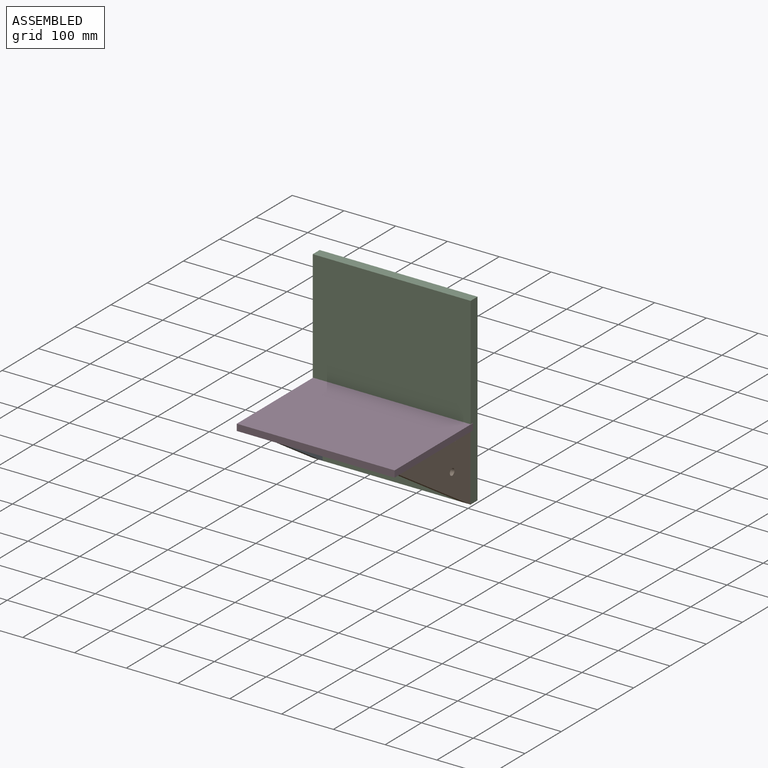
[diagram: assembled view]
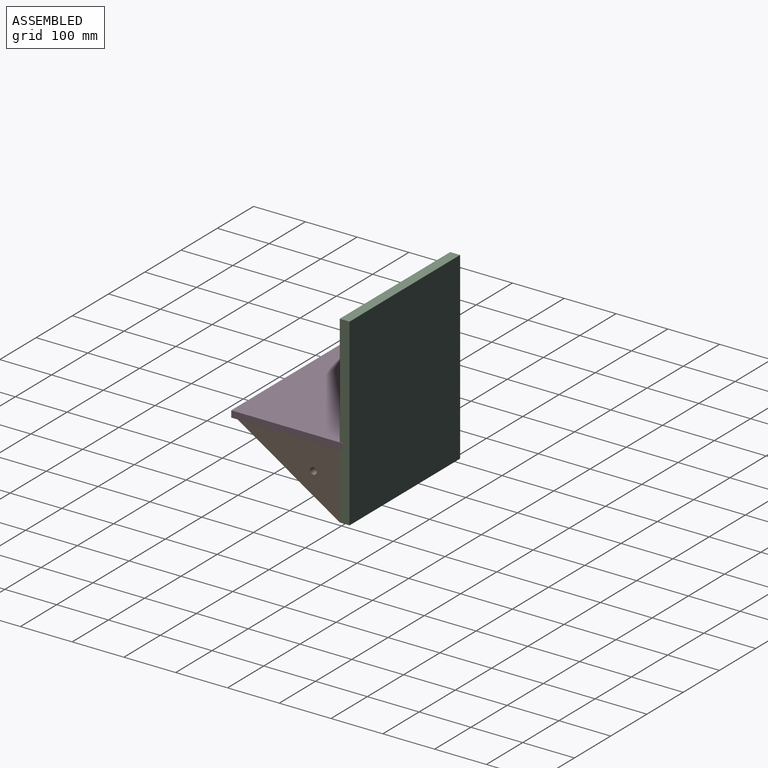
[diagram: assembled view, second angle]
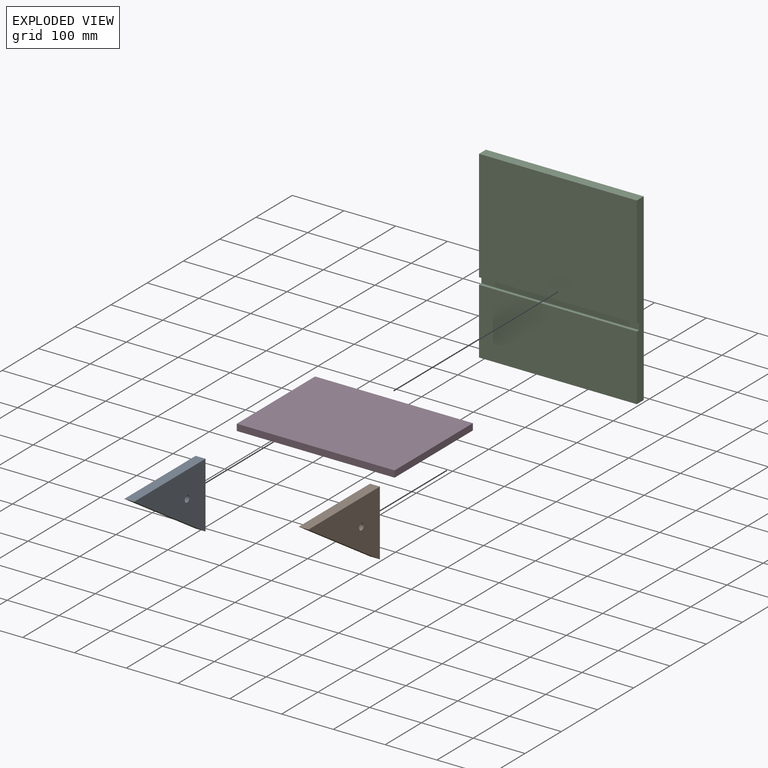
[diagram: exploded view]
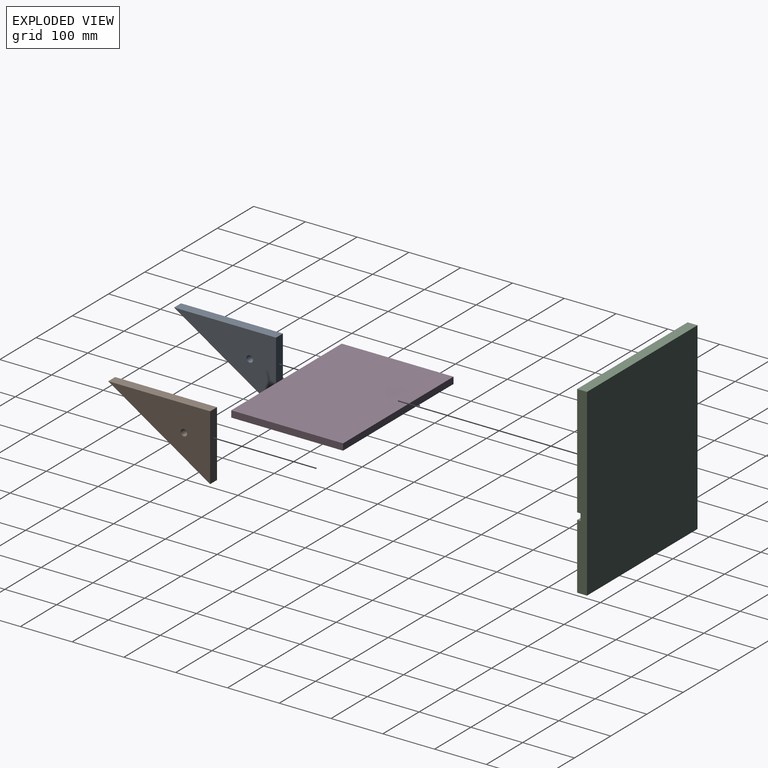
[diagram: exploded view, second angle]
ASSEMBLY  parts=4 mates=3
PART A: 6 faces, bbox 19.1x196.9x127 mm
  f0: plane 196.85x127mm, normal (0,-0.54,-0.84), area 4462.7mm2, adj f1,f2,f3,f4
  f1: plane 127x19.05mm, normal (0,1,0), area 2419.4mm2, adj f0,f2,f3,f4
  f2: plane 196.85x19.05mm, normal (0,0,1), area 3750mm2, adj f0,f1,f3,f4
  f3: plane 196.85x127mm, normal (1,0,0), area 12373.3mm2, adj f0,f1,f2,f5
  f4: plane 196.85x127mm, normal (-1,0,0), area 12373.3mm2, adj f0,f1,f2,f5
  f5: cylinder r=6.35mm len=19.05mm, axis (1,0,0), area 760.1mm2, adj f3,f4
PART B: same geometry as A
PART C: 10 faces, bbox 304.8x19.1x355.6 mm
  f0: plane 304.8x215.39mm, normal (0,-1,0), area 65651.5mm2, adj f1,f2,f3,f7
  f1: plane 355.6x19.05mm, normal (1,0,0), area 6690mm2, adj f0,f2,f4,f5,f6,f7,f8,f9
  f2: plane 304.8x19.05mm, normal (0,0,1), area 5806.4mm2, adj f0,f1,f3,f6
  f3: plane 355.6x19.05mm, normal (-1,0,0), area 6690mm2, adj f0,f2,f4,f5,f6,f7,f8,f9
  f4: plane 304.8x19.05mm, normal (0,0,-1), area 5806.4mm2, adj f1,f3,f5,f6
  f5: plane 304.8x127mm, normal (0,-1,0), area 38709.6mm2, adj f1,f3,f4,f8
  f6: plane 355.6x304.8mm, normal (0,1,0), area 108386.9mm2, adj f1,f2,f3,f4
  f7: plane 304.8x6.38mm, normal (0,0,-1), area 1943.2mm2, adj f0,f1,f3,f9
  f8: plane 304.8x6.38mm, normal (0,0,1), area 1943.2mm2, adj f1,f3,f5,f9
  f9: plane 304.8x13.21mm, normal (0,-1,0), area 4025.8mm2, adj f1,f3,f7,f8
PART D: 6 faces, bbox 304.8x215.9x12.7 mm
  f0: plane 304.8x12.7mm, normal (0,1,0), area 3871mm2, adj f1,f3,f4,f5
  f1: plane 215.9x12.7mm, normal (-1,0,0), area 2741.9mm2, adj f0,f2,f4,f5
  f2: plane 304.8x12.7mm, normal (0,-1,0), area 3871mm2, adj f1,f3,f4,f5
  f3: plane 215.9x12.7mm, normal (1,0,0), area 2741.9mm2, adj f0,f2,f4,f5
  f4: plane 304.8x215.9mm, normal (0,0,1), area 65806.3mm2, adj f0,f1,f2,f3
  f5: plane 304.8x215.9mm, normal (0,0,-1), area 65806.3mm2, adj f0,f1,f2,f3
PLACE A t=(0,0,-247.9)mm
PLACE B t=(285.75,0,-247.9)mm
PLACE C t=(0,19.05,-120.9)mm
PLACE D t=(0,-209.52,-120.9)mm
MATE fastened A.f1 <-> C.f5  axis (0,1,0) through (0,0,-120.9)mm
MATE fastened B.f1 <-> C.f5  axis (0,-1,0) through (304.8,0,-120.9)mm
MATE fastened C.f9 <-> D.f0  axis (0,-1,0) through (152.4,6.38,-120.9)mm
